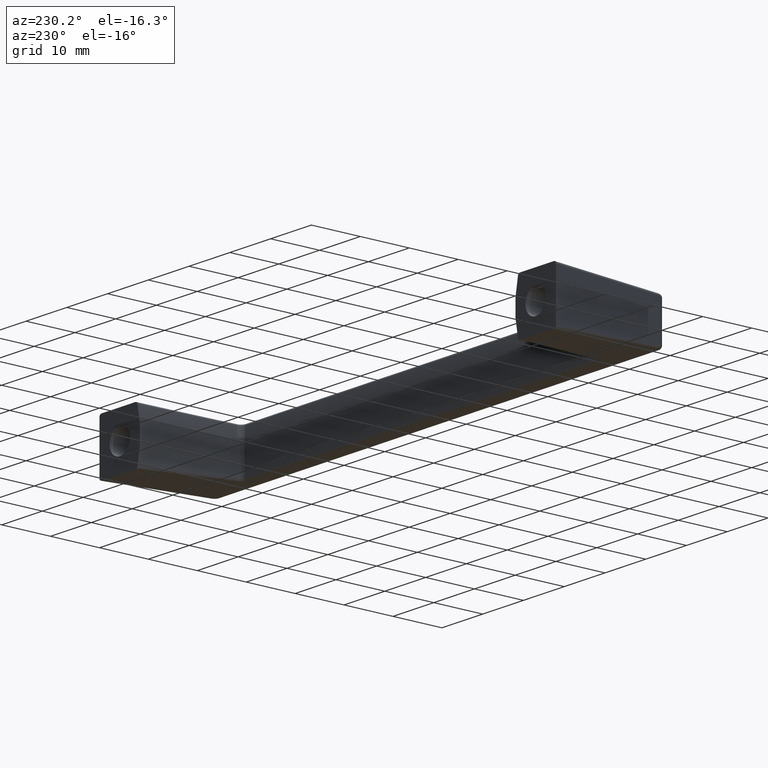
[diagram: clean part render]
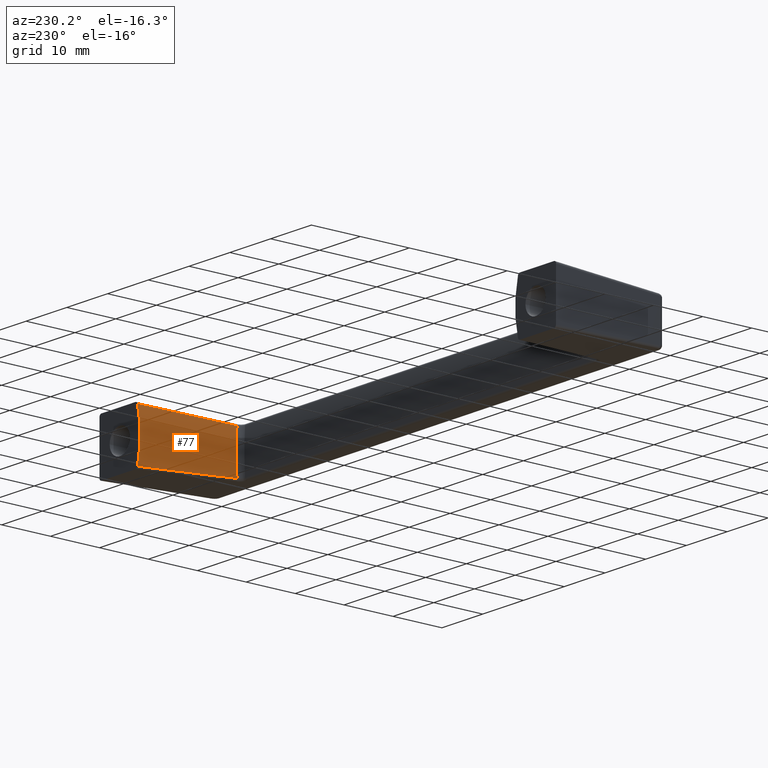
[diagram: same view with one face highlighted and labeled with its STEP entity id]
A machine part, auxiliary view. The second image highlights one B-rep face of the part: STEP entity #77.
In plain terms, the highlighted cylindrical surface (partial cylindrical patch) has radius 20.03 mm, axis along (-0.1339, -0.991, 0).
Its self-contained STEP definition (entity closure, byte-faithful):
#77=ADVANCED_FACE('',(#136),#135,.T.);
#135=CYLINDRICAL_SURFACE('',#582,2.00300000000E+001);
#136=FACE_OUTER_BOUND('',#583,.T.);
#579=CARTESIAN_POINT('',(6.50244290431E+001,5.68434188608E-014,8.78703517632E+000));
#580=DIRECTION('',(-1.33917150204E-001,-0.00000000000E+000,9.90992531194E-001));
#581=DIRECTION('',(9.90992531194E-001,-0.00000000000E+000,1.33917150204E-001));
#582=AXIS2_PLACEMENT_3D('',#579,#580,#581);
#583=EDGE_LOOP('',(#935,#936,#937,#938));
#935=ORIENTED_EDGE('',*,*,#1117,.T.);
#936=ORIENTED_EDGE('',*,*,#1119,.T.);
#937=ORIENTED_EDGE('',*,*,#1120,.F.);
#938=ORIENTED_EDGE('',*,*,#1121,.T.);
#1117=EDGE_CURVE('',#1246,#1239,#1247,.T.);
#1119=EDGE_CURVE('',#1239,#1259,#1260,.T.);
#1120=EDGE_CURVE('',#1266,#1259,#1267,.T.);
#1121=EDGE_CURVE('',#1266,#1246,#1273,.T.);
#1239=VERTEX_POINT('',#1863);
#1246=VERTEX_POINT('',#1872);
#1247=(BOUNDED_CURVE() B_SPLINE_CURVE(3,(#1873,#1874,#1875,#1876,#1877,#1878,#1879,#1880,#1881,#1882),.UNSPECIFIED.,.F.,.F.) B_SPLINE_CURVE_WITH_KNOTS((4,2,2,2,4),(4.05207833182E-004,4.75896277002E-003,5.84740150423E-003,6.93584023844E-003,9.11271770686E-003),.UNSPECIFIED.) CURVE() GEOMETRIC_REPRESENTATION_ITEM() RATIONAL_B_SPLINE_CURVE((1.00000000000E+000,1.00000000000E+000,1.00000000000E+000,1.00000000000E+000,1.00000000000E+000,1.00000000000E+000,1.00000000000E+000,1.00000000000E+000,1.00000000000E+000,1.00000000000E+000)) REPRESENTATION_ITEM('') );
#1259=VERTEX_POINT('',#1891);
#1260=(BOUNDED_CURVE() B_SPLINE_CURVE(2,(#1892,#1893,#1894),.UNSPECIFIED.,.F.,.F.) B_SPLINE_CURVE_WITH_KNOTS((3,3),(-1.35941033584E+000,-1.31789270116E+000),.UNSPECIFIED.) CURVE() GEOMETRIC_REPRESENTATION_ITEM() RATIONAL_B_SPLINE_CURVE((1.00000000000E+000,9.99784543489E-001,1.00000000000E+000)) REPRESENTATION_ITEM('') );
#1266=VERTEX_POINT('',#1895);
#1267=(BOUNDED_CURVE() B_SPLINE_CURVE(2,(#1896,#1897,#1898),.UNSPECIFIED.,.F.,.F.) B_SPLINE_CURVE_WITH_KNOTS((3,3),(-3.40031758657E+000,-2.88286772061E+000),.UNSPECIFIED.) CURVE() GEOMETRIC_REPRESENTATION_ITEM() RATIONAL_B_SPLINE_CURVE((1.00000000000E+000,9.66716987402E-001,1.00000000000E+000)) REPRESENTATION_ITEM('') );
#1273=(BOUNDED_CURVE() B_SPLINE_CURVE(2,(#1899,#1900,#1901),.UNSPECIFIED.,.F.,.F.) B_SPLINE_CURVE_WITH_KNOTS((3,3),(1.31789270116E+000,1.35941033584E+000),.UNSPECIFIED.) CURVE() GEOMETRIC_REPRESENTATION_ITEM() RATIONAL_B_SPLINE_CURVE((1.00000000000E+000,9.99784543489E-001,1.00000000000E+000)) REPRESENTATION_ITEM('') );
#1863=CARTESIAN_POINT('',(4.40253750347E+001,4.31653280453E+000,1.81252620293E+001));
#1872=CARTESIAN_POINT('',(4.40253750347E+001,-4.31653280453E+000,1.81252620293E+001));
#1873=CARTESIAN_POINT('',(4.40253750347E+001,-4.31653280453E+000,1.81252620293E+001));
#1874=CARTESIAN_POINT('',(4.37562363594E+001,-2.91169063869E+000,1.78017885744E+001));
#1875=CARTESIAN_POINT('',(4.36174422666E+001,-1.47674606966E+000,1.76349756196E+001));
#1876=CARTESIAN_POINT('',(4.36166560794E+001,3.56819872975E-001,1.76340307193E+001));
#1877=CARTESIAN_POINT('',(4.36253328323E+001,7.25943003912E-001,1.76444591070E+001));
#1878=CARTESIAN_POINT('',(4.36599376612E+001,1.45654628363E+000,1.76860498688E+001));
#1879=CARTESIAN_POINT('',(4.36858349064E+001,1.81948447812E+000,1.77171751882E+001));
#1880=CARTESIAN_POINT('',(4.37886702868E+001,2.90138493522E+000,1.78407708407E+001));
#1881=CARTESIAN_POINT('',(4.38906795050E+001,3.61345302804E+000,1.79633736337E+001));
#1882=CARTESIAN_POINT('',(4.40253750347E+001,4.31653280453E+000,1.81252620293E+001));
#1891=CARTESIAN_POINT('',(4.66725182308E+001,5.12463806911E+000,0.00000000000E+000));
#1892=CARTESIAN_POINT('',(4.40253750347E+001,4.31653280453E+000,1.81252620293E+001));
#1893=CARTESIAN_POINT('',(4.53466530203E+001,4.72262025616E+000,9.01696168105E+000));
#1894=CARTESIAN_POINT('',(4.66725182308E+001,5.12463806911E+000,6.46763109880E-013));
#1895=CARTESIAN_POINT('',(4.66725182308E+001,-5.12463806911E+000,0.00000000000E+000));
#1896=CARTESIAN_POINT('',(4.66725182308E+001,-5.12463806911E+000,0.00000000000E+000));
#1897=CARTESIAN_POINT('',(4.53039208134E+001,-9.32587340685E-015,0.00000000000E+000));
#1898=CARTESIAN_POINT('',(4.66725182308E+001,5.12463806911E+000,0.00000000000E+000));
#1899=CARTESIAN_POINT('',(4.66725182308E+001,-5.12463806911E+000,6.01109243300E-013));
#1900=CARTESIAN_POINT('',(4.53466530203E+001,-4.72262025616E+000,9.01696168105E+000));
#1901=CARTESIAN_POINT('',(4.40253750347E+001,-4.31653280453E+000,1.81252620293E+001));